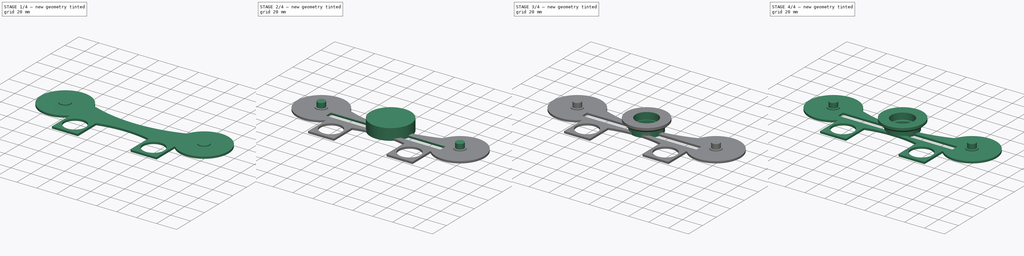
[diagram: build sequence overview — one tinted view per stage of 4, left to right]
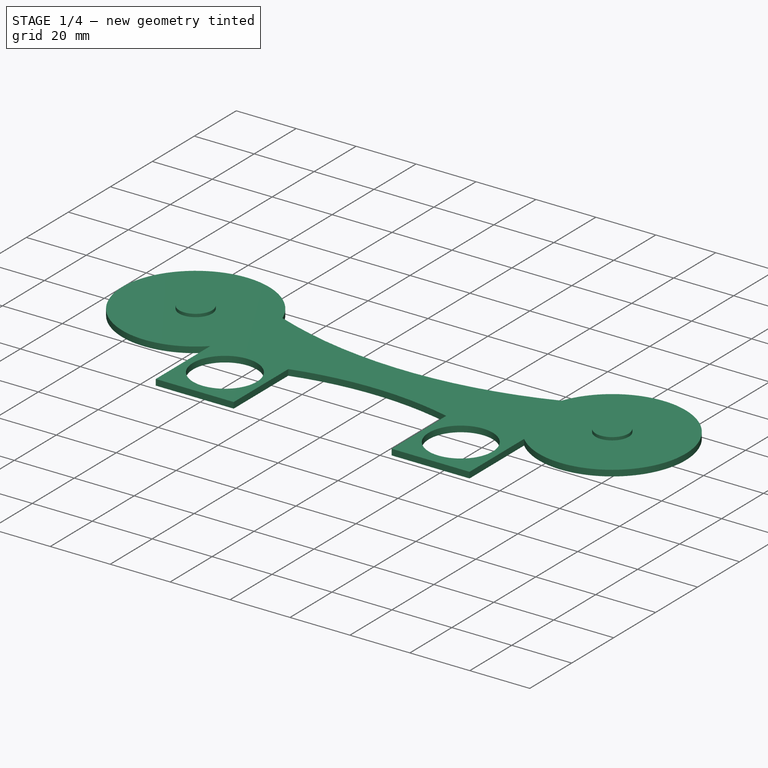
[diagram: stage 1 of 4 — iso view after this stage's code; geometry added in this stage tinted green]
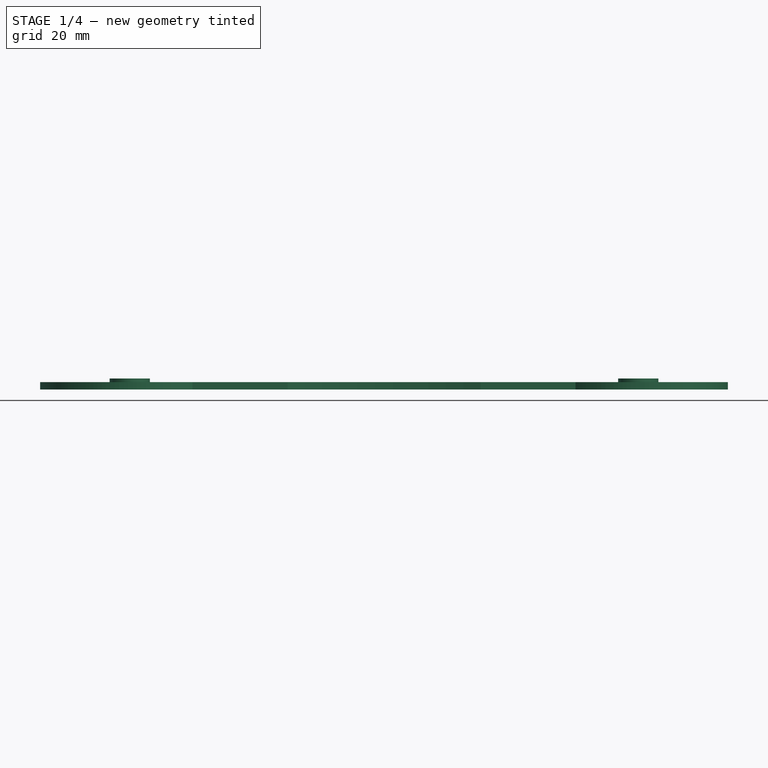
[diagram: stage 1 of 4 — front view after this stage's code; geometry added in this stage tinted green]
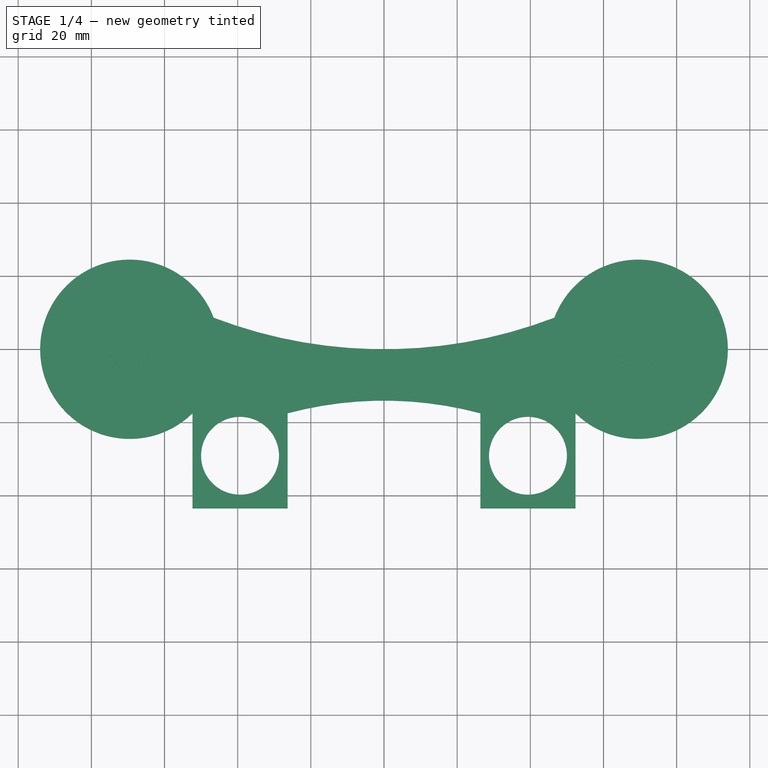
[diagram: stage 1 of 4 — top view after this stage's code; geometry added in this stage tinted green]
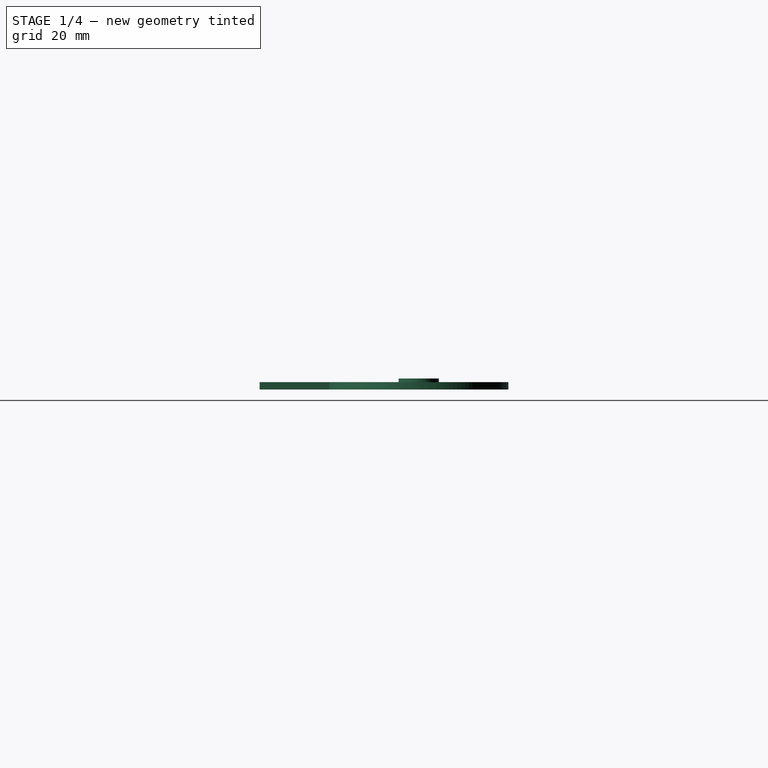
[diagram: stage 1 of 4 — right view after this stage's code; geometry added in this stage tinted green]
FCSTD DOCUMENT  (FreeCAD 0.18R16131 (Git))
Label: DryBoxRoller
License: All rights reserved
LicenseURL: http://en.wikipedia.org/wiki/All_rights_reserved
objects: Sketcher::SketchObject×9, PartDesign::Pocket×5, PartDesign::Pad×4, PartDesign::Chamfer×4, PartDesign::Body×2, App::Part×2
note: 33 computed .brp shape members not serialized (recipe doc carries the construction recipe); baked Part::Feature solids carry a one-line shape summary decoded from their .brp

FEATURE [Sketcher::SketchObject] Sketch004
  MapMode = 5
  Support = -> [XY_Plane003]
  sketch-geometry (16):
    g0: Circle [constr] CenterX=-69.5 CenterY=0 CenterZ=0 NormalX=0 NormalY=0 NormalZ=1 AngleXU=0 Radius=24.5
    g1: Circle [constr] CenterX=69.5 CenterY=0 CenterZ=0 NormalX=0 NormalY=0 NormalZ=1 AngleXU=0 Radius=24.5
    g2: ArcOfCircle CenterX=-0.00012 CenterY=130 CenterZ=0 NormalX=0 NormalY=0 NormalZ=1 AngleXU=0 Radius=130 StartAngle=4.34602 EndAngle=5.07876
    g3: LineSegment [constr] StartX=-52.3536 StartY=-17.5 StartZ=0 EndX=-26.3536 EndY=-17.5 EndZ=0
    g4: LineSegment StartX=-26.3536 StartY=-17.5 StartZ=0 EndX=-26.3536 EndY=-43.5 EndZ=0
    g5: LineSegment StartX=-26.3536 StartY=-43.5 StartZ=0 EndX=-52.3536 EndY=-43.5 EndZ=0
    g6: LineSegment StartX=-52.3536 StartY=-43.5 StartZ=0 EndX=-52.3536 EndY=-17.5 EndZ=0
    g7: LineSegment [constr] StartX=52.3536 StartY=-17.5 StartZ=0 EndX=26.3536 EndY=-17.5 EndZ=0
    g8: LineSegment StartX=26.3536 StartY=-17.5 StartZ=0 EndX=26.3536 EndY=-43.5 EndZ=0
    g9: LineSegment StartX=26.3536 StartY=-43.5 StartZ=0 EndX=52.3536 EndY=-43.5 EndZ=0
    g10: LineSegment StartX=52.3536 StartY=-43.5 StartZ=0 EndX=52.3536 EndY=-17.5 EndZ=0
    g11: ArcOfCircle CenterX=4.7e-15 CenterY=-115.829 CenterZ=0 NormalX=0 NormalY=0 NormalZ=1 AngleXU=0 Radius=101.799 StartAngle=1.30894 EndAngle=1.83266
    g12: Circle [constr] CenterX=-39.3536 CenterY=-29.11 CenterZ=0 NormalX=0 NormalY=0 NormalZ=1 AngleXU=0 Radius=10.61
    g13: Circle [constr] CenterX=39.3536 CenterY=-29.11 CenterZ=0 NormalX=0 NormalY=0 NormalZ=1 AngleXU=0 Radius=10.61
    g14: ArcOfCircle CenterX=-69.5 CenterY=7.9e-15 CenterZ=0 NormalX=0 NormalY=0 NormalZ=1 AngleXU=0 Radius=24.5 StartAngle=0.359854 EndAngle=5.48758
    g15: ArcOfCircle CenterX=69.5 CenterY=-1.623e-13 CenterZ=0 NormalX=0 NormalY=0 NormalZ=1 AngleXU=0 Radius=24.5 StartAngle=3.9372 EndAngle=9.06492
  constraints (48):
    c: PointOnObject(g0,g-1)
    c: Radius(g0) = 24.5
    c: PointOnObject(g1,g-1)
    c: DistanceX(g0,g-1) = 69.5
    c: DistanceX(g-1,g1) = 69.5
    c: PointOnObject(g2,g0)
    c: PointOnObject(g2,g1)
    c: PointOnObject(g-1,g2)
    c: Coincident(g3,g4)
    c: Coincident(g4,g5)
    c: Coincident(g5,g6)
    c: Coincident(g6,g3)
    c: Horizontal(g3)
    c: Horizontal(g5)
    c: Vertical(g4)
    c: Vertical(g6)
    c: PointOnObject(g3,g0)
    c: Coincident(g7,g8)
    c: Coincident(g8,g9)
    c: Coincident(g9,g10)
    c: Coincident(g10,g7)
    c: Horizontal(g7)
    c: Horizontal(g9)
    c: Vertical(g8)
    c: Vertical(g10)
    c: DistanceY(g5,g3) = 26
    c: DistanceX(g5,g4) = 26
    c: PointOnObject(g7,g1)
    c: Equal(g0,g1)
    c: Equal(g3,g7)
    c: Equal(g4,g8)
    c: DistanceY(g7,g-1) = 17.5
    c: DistanceY(g3,g-1) = 17.5
    c: Radius(g2) = 130
    c: Coincident(g11,g3)
    c: Coincident(g11,g7)
    c: Radius(g12) = 10.61
    c: DistanceY(g12,g3) = 11.61
    c: DistanceX(g5,g12) = 13
    c: Equal(g12,g13)
    c: DistanceY(g13,g7) = 11.61
    c: DistanceX(g13,g9) = 13
    c: Coincident(g14,g2)
    c: Coincident(g14,g3)
    c: Tangent(g14,g0)
    c: Coincident(g15,g2)
    c: Coincident(g15,g7)
    c: Tangent(g15,g1)
FEATURE [PartDesign::Pad] Pad001  label="MainBodyPad"
  Length = 2
  Length2 = 100
  Profile = -> Sketch004
  Type = 0
FEATURE [PartDesign::Body] Body
  Group = -> [Sketch,Pad,Sketch001,Pocket,Sketch002,Pocket001,Sketch003,Pocket002,Chamfer,Chamfer001,Chamfer002,Chamfer003]
  Origin = -> Origin002
  Tip = -> Chamfer003
FEATURE [App::Part] Part001  label="Roller"
  Group = -> [Body]
  Origin = -> Origin001
FEATURE [Sketcher::SketchObject] Sketch005
  ExternalGeometry = -> [Sketch004]
  MapMode = 5
  Placement = pos=(0,0,2) rot=(0,0,1;0rad)
  Support = -> [Pad001]
  sketch-geometry (2):
    g0: Circle CenterX=-39.3536 CenterY=-29.11 CenterZ=0 NormalX=0 NormalY=0 NormalZ=1 AngleXU=0 Radius=10.65
    g1: Circle CenterX=39.3536 CenterY=-29.11 CenterZ=0 NormalX=0 NormalY=0 NormalZ=1 AngleXU=0 Radius=10.65
  constraints (6):
    c: Radius(g0) = 10.65
    c: Equal(g0,g1)
    c: DistanceX(g-4,g0) = 13
    c: DistanceX(g1,g-6) = 13
    c: DistanceY(g0,g-3) = 11.61
    c: DistanceY(g1,g-6) = 11.61
FEATURE [PartDesign::Pocket] Pocket003  label="PVCSpacerPocket"
  BaseFeature = -> Pad001
  Length = 5
  Length2 = 100
  Profile = -> Sketch005
  Type = 1
FEATURE [Sketcher::SketchObject] Sketch006
  ExternalGeometry = -> [Pocket003]
  MapMode = 5
  Placement = pos=(0,0,2) rot=(0,0,1;0rad)
  Support = -> [Pocket003]
  sketch-geometry (2):
    g0: Circle CenterX=-69.5 CenterY=0 CenterZ=0 NormalX=0 NormalY=0 NormalZ=1 AngleXU=0 Radius=5.5
    g1: Circle CenterX=69.5 CenterY=0 CenterZ=0 NormalX=0 NormalY=0 NormalZ=1 AngleXU=0 Radius=5.5
  constraints (4):
    c: Coincident(g0,g-3)
    c: Coincident(g1,g-4)
    c: Equal(g0,g1)
    c: Radius(g0) = 5.5
FEATURE [PartDesign::Pad] Pad002  label="BearingBushingPad"
  BaseFeature = -> Pocket003
  Length = 1
  Length2 = 100
  Profile = -> Sketch006
  Type = 0
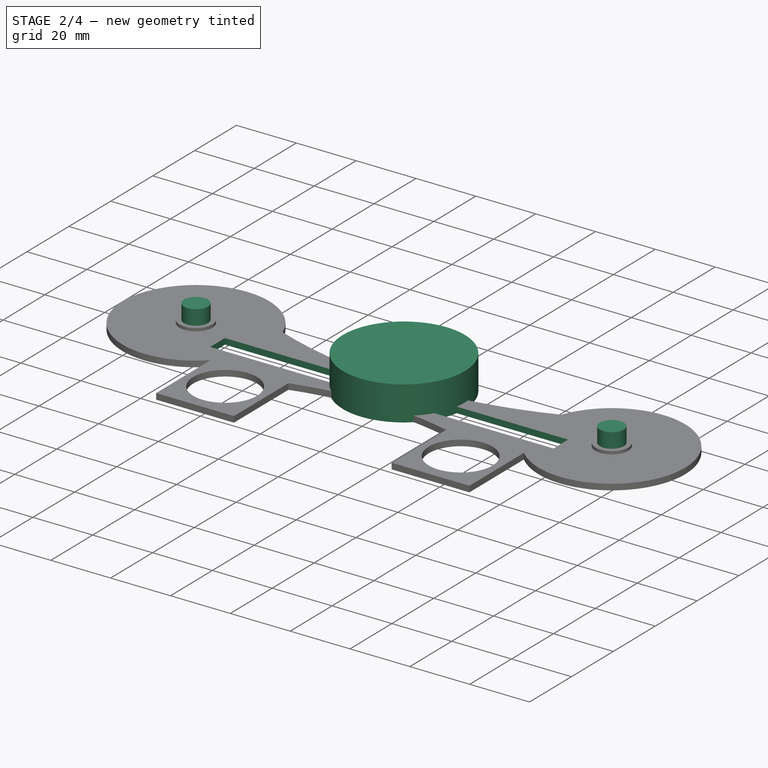
[diagram: stage 2 of 4 — iso view after this stage's code; geometry added in this stage tinted green]
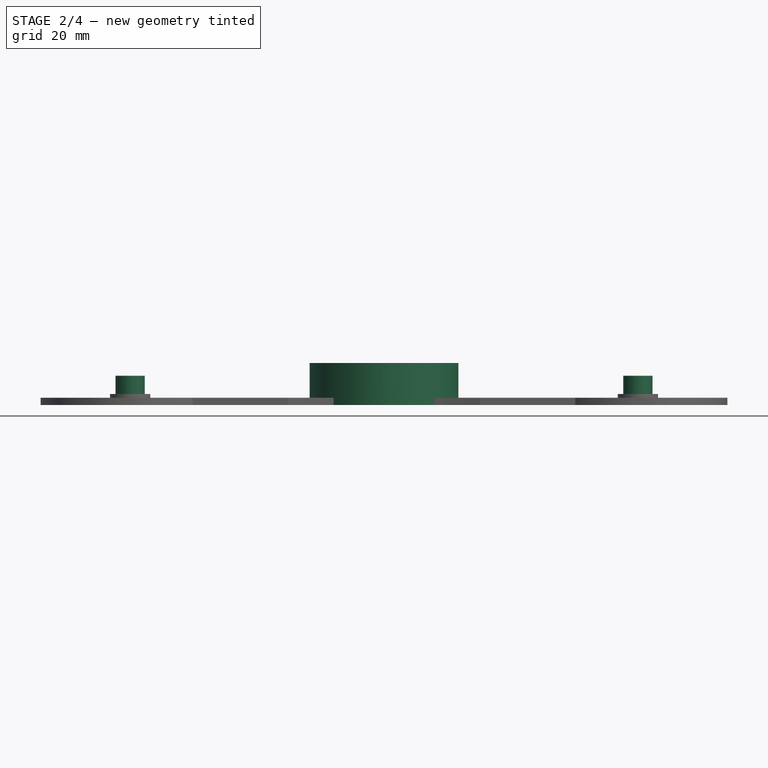
[diagram: stage 2 of 4 — front view after this stage's code; geometry added in this stage tinted green]
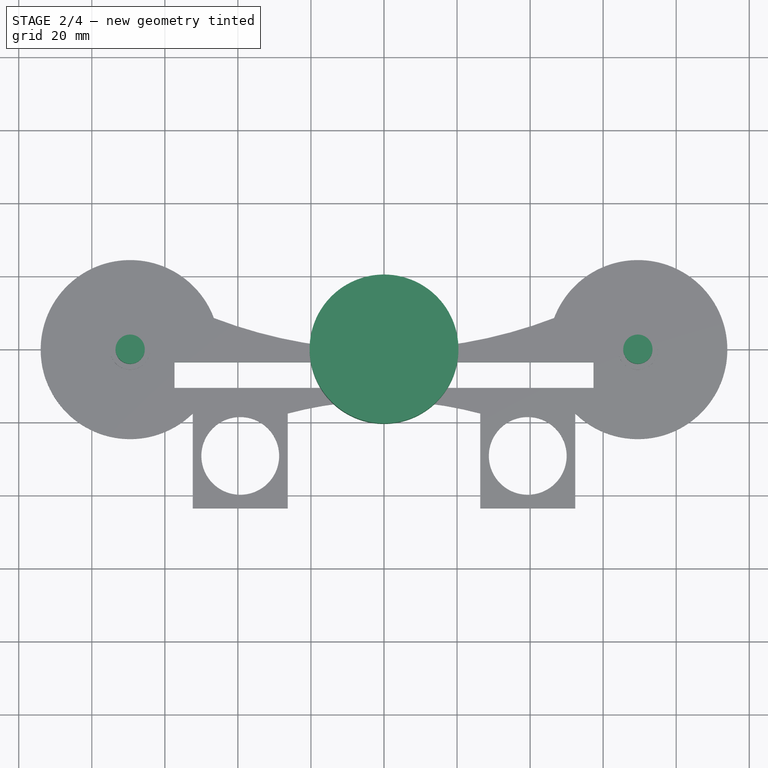
[diagram: stage 2 of 4 — top view after this stage's code; geometry added in this stage tinted green]
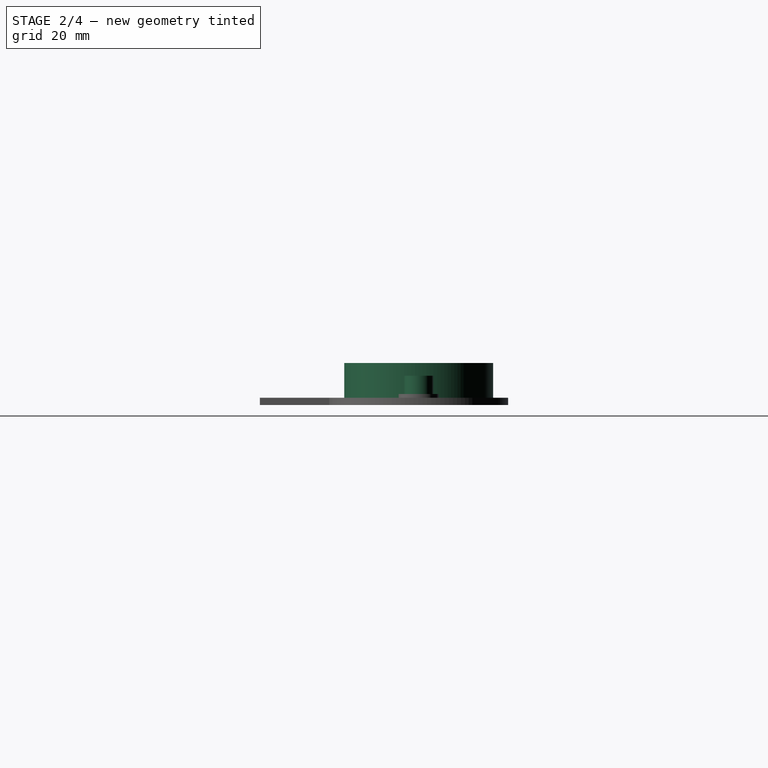
[diagram: stage 2 of 4 — right view after this stage's code; geometry added in this stage tinted green]
FEATURE [Sketcher::SketchObject] Sketch
  MapMode = 5
  Support = -> [XY_Plane002]
  sketch-geometry (1):
    g0: Circle CenterX=0 CenterY=0 CenterZ=0 NormalX=0 NormalY=0 NormalZ=1 AngleXU=0 Radius=20.375
  constraints (2):
    c: Coincident(g0,g-1)
    c: Radius(g0) = 20.375
FEATURE [PartDesign::Pad] Pad  label="MainBody"
  Length = 11.5
  Length2 = 100
  Profile = -> Sketch
  Type = 0
FEATURE [Sketcher::SketchObject] Sketch007
  ExternalGeometry = -> [Pocket003]
  MapMode = 5
  Placement = pos=(0,0,2) rot=(0,0,1;0rad)
  Support = -> [Pad002]
  sketch-geometry (2):
    g0: Circle CenterX=-69.5 CenterY=0 CenterZ=0 NormalX=0 NormalY=0 NormalZ=1 AngleXU=0 Radius=4
    g1: Circle CenterX=69.5 CenterY=-1.623e-13 CenterZ=0 NormalX=0 NormalY=0 NormalZ=1 AngleXU=0 Radius=4
  constraints (4):
    c: Coincident(g0,g-3)
    c: Coincident(g1,g-4)
    c: Equal(g1,g0)
    c: Radius(g0) = 4
FEATURE [PartDesign::Pad] Pad003  label="BearingStudPad"
  BaseFeature = -> Pad002
  Length = 6
  Length2 = 100
  Profile = -> Sketch007
  Type = 0
FEATURE [Sketcher::SketchObject] Sketch008
  ExternalGeometry = -> [Pad003]
  MapMode = 5
  Placement = pos=(0,0,2) rot=(0,0,1;0rad)
  Support = -> [Pad003]
  sketch-geometry (4):
    g0: LineSegment StartX=-57.3536 StartY=-3.5 StartZ=0 EndX=57.3536 EndY=-3.5 EndZ=0
    g1: LineSegment StartX=57.3536 StartY=-3.5 StartZ=0 EndX=57.3536 EndY=-10.5 EndZ=0
    g2: LineSegment StartX=57.3536 StartY=-10.5 StartZ=0 EndX=-57.3536 EndY=-10.5 EndZ=0
    g3: LineSegment StartX=-57.3536 StartY=-10.5 StartZ=0 EndX=-57.3536 EndY=-3.5 EndZ=0
  constraints (12):
    c: Coincident(g0,g1)
    c: Coincident(g1,g2)
    c: Coincident(g2,g3)
    c: Coincident(g3,g0)
    c: Horizontal(g0)
    c: Horizontal(g2)
    c: Vertical(g1)
    c: Vertical(g3)
    c: DistanceX(g1,g-4) = -5
    c: DistanceX(g-3,g2) = -5
    c: DistanceY(g-4,g1) = 7
    c: DistanceY(g1,g0) = 7
FEATURE [PartDesign::Pocket] Pocket004  label="FilamentSaverPocket"
  BaseFeature = -> Pad003
  Length = 5
  Length2 = 100
  Profile = -> Sketch008
  Type = 1
FEATURE [PartDesign::Body] Body001
  Group = -> [Sketch004,Pad001,Sketch005,Pocket003,Sketch006,Pad002,Sketch007,Pad003,Sketch008,Pocket004]
  Origin = -> Origin003
  Tip = -> Pocket004
FEATURE [App::Part] Part  label="Side"
  Group = -> [Body001]
  Origin = -> Origin
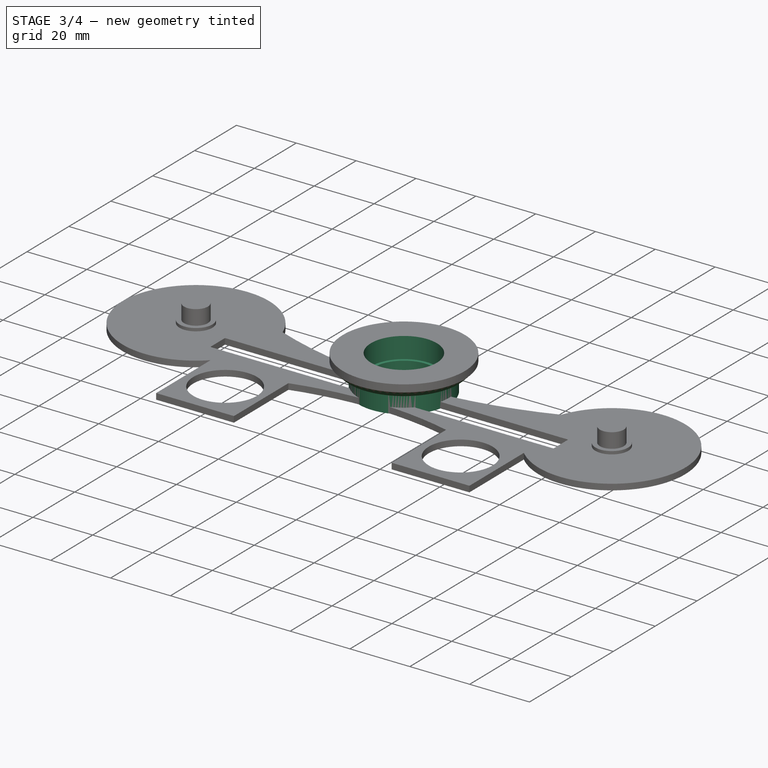
[diagram: stage 3 of 4 — iso view after this stage's code; geometry added in this stage tinted green]
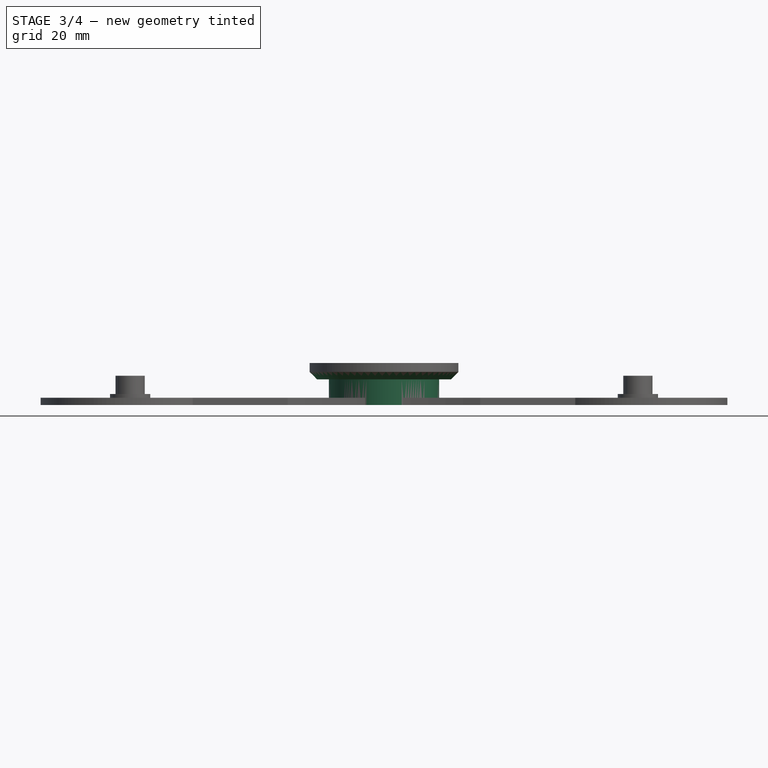
[diagram: stage 3 of 4 — front view after this stage's code; geometry added in this stage tinted green]
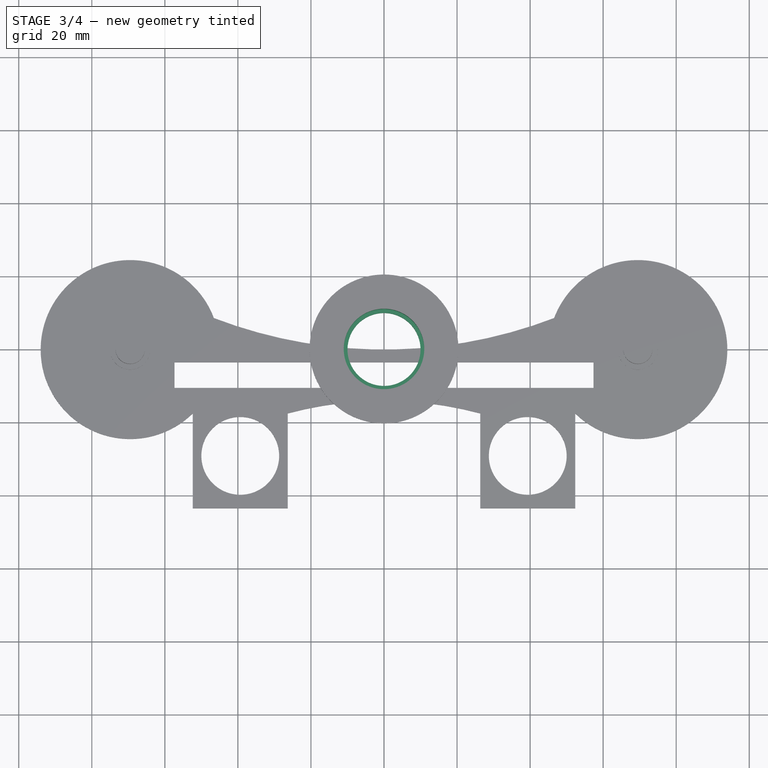
[diagram: stage 3 of 4 — top view after this stage's code; geometry added in this stage tinted green]
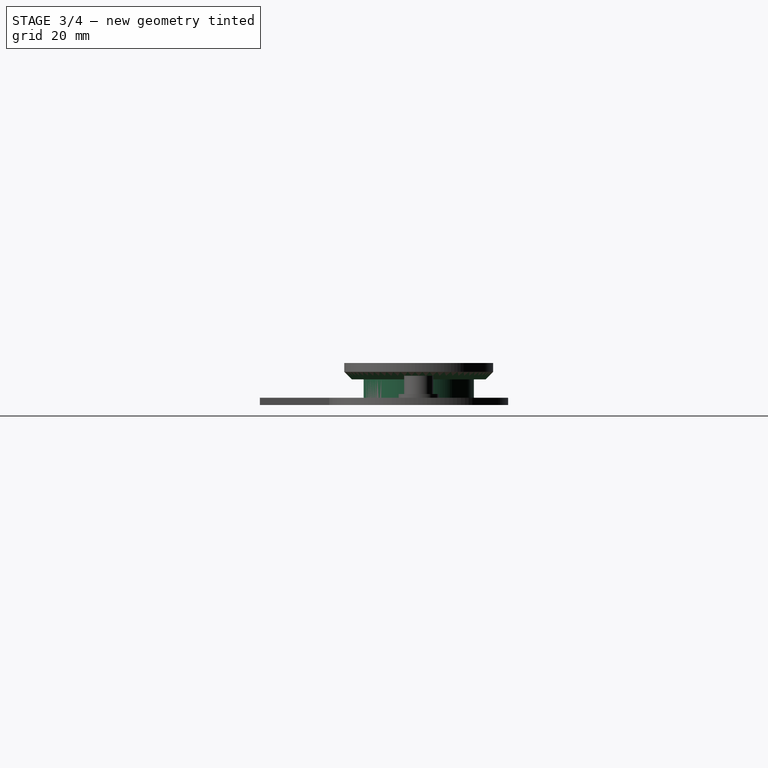
[diagram: stage 3 of 4 — right view after this stage's code; geometry added in this stage tinted green]
FEATURE [Sketcher::SketchObject] Sketch001
  MapMode = 5
  Placement = pos=(0,0,11.5) rot=(0,0,1;0rad)
  Support = -> [Pad]
  sketch-geometry (1):
    g0: Circle CenterX=0 CenterY=0 CenterZ=0 NormalX=0 NormalY=0 NormalZ=1 AngleXU=0 Radius=11.02
  constraints (2):
    c: Coincident(g0,g-1)
    c: Radius(g0) = 11.02
FEATURE [PartDesign::Pocket] Pocket  label="BearingPocket"
  BaseFeature = -> Pad
  Length = 7
  Length2 = 100
  Profile = -> Sketch001
  Type = 0
FEATURE [Sketcher::SketchObject] Sketch002
  MapMode = 5
  Placement = pos=(0,0,0) rot=(1,0,0;3.14159rad)
  Support = -> [Pocket]
  sketch-geometry (2):
    g0: Circle CenterX=0 CenterY=0 CenterZ=0 NormalX=0 NormalY=0 NormalZ=1 AngleXU=0 Radius=15.1
    g1: Circle CenterX=0 CenterY=0 CenterZ=0 NormalX=0 NormalY=0 NormalZ=1 AngleXU=0 Radius=22.558
  constraints (3):
    c: Coincident(g0,g-1)
    c: Radius(g0) = 15.1
    c: Coincident(g1,g0)
FEATURE [PartDesign::Pocket] Pocket001  label="PVCRollerPocket"
  BaseFeature = -> Pocket
  Length = 7
  Length2 = 100
  Profile = -> Sketch002
  Type = 0
FEATURE [Sketcher::SketchObject] Sketch003
  MapMode = 5
  Placement = pos=(0,0,0) rot=(1,0,0;3.14159rad)
  sketch-geometry (1):
    g0: Circle CenterX=0 CenterY=0 CenterZ=0 NormalX=0 NormalY=0 NormalZ=1 AngleXU=0 Radius=10
  constraints (2):
    c: Coincident(g0,g-1)
    c: Radius(g0) = 10
FEATURE [PartDesign::Pocket] Pocket002  label="MaterialSaverPocket"
  BaseFeature = -> Pocket001
  Length = 5
  Length2 = 100
  Profile = -> Sketch003
  Type = 1
FEATURE [PartDesign::Chamfer] Chamfer  label="SpoolAlignmentChamfer"
  Base = -> Pocket002 [Edge1]
  BaseFeature = -> Pocket002
  Size = 2.07
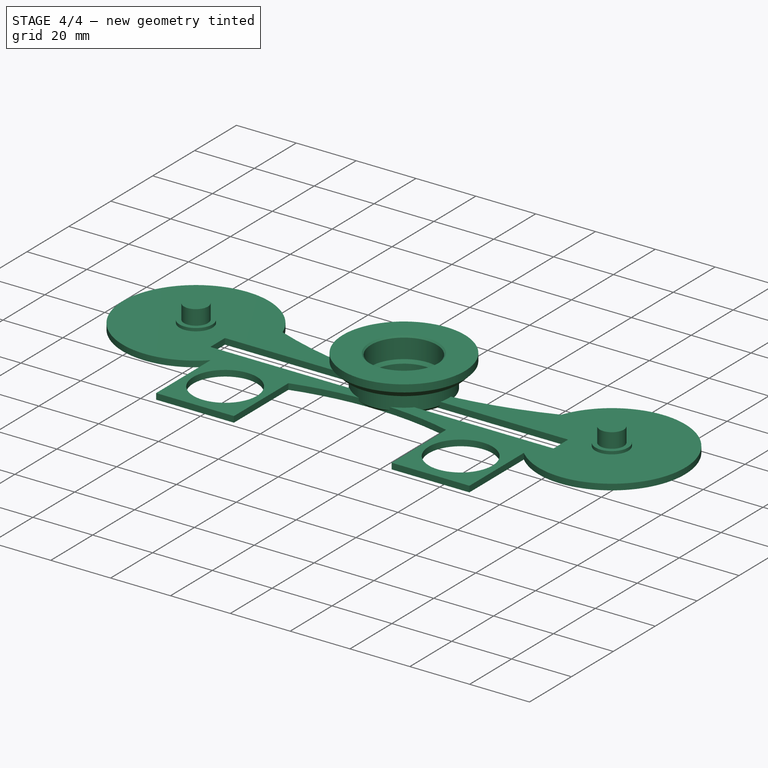
[diagram: stage 4 of 4 — iso view after this stage's code; geometry added in this stage tinted green]
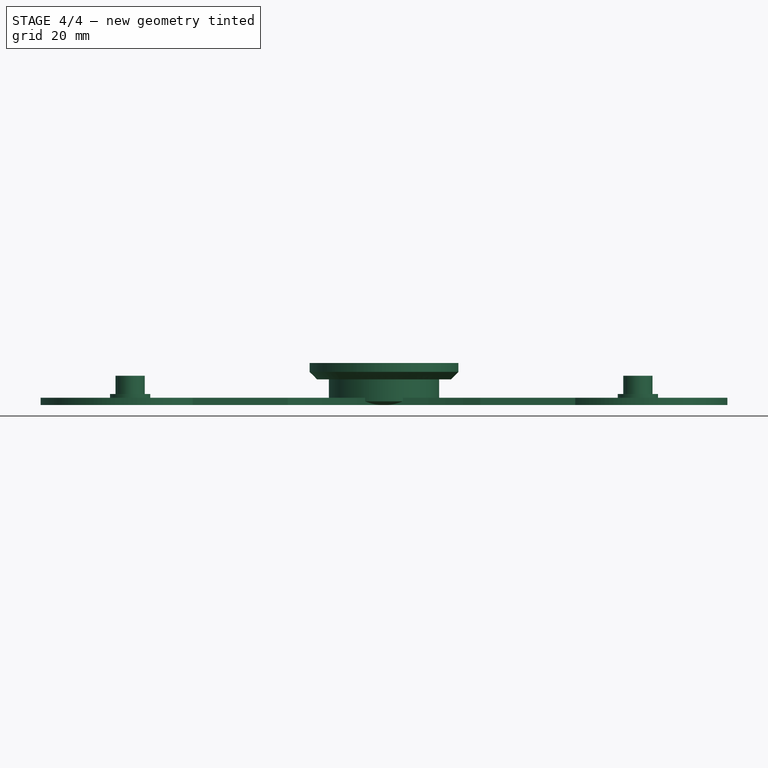
[diagram: stage 4 of 4 — front view after this stage's code; geometry added in this stage tinted green]
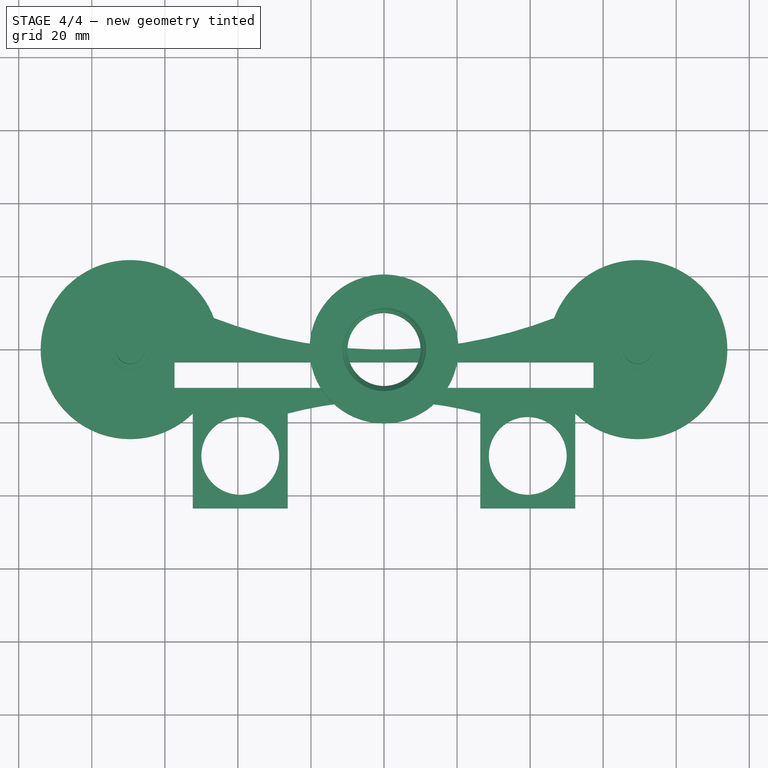
[diagram: stage 4 of 4 — top view after this stage's code; geometry added in this stage tinted green]
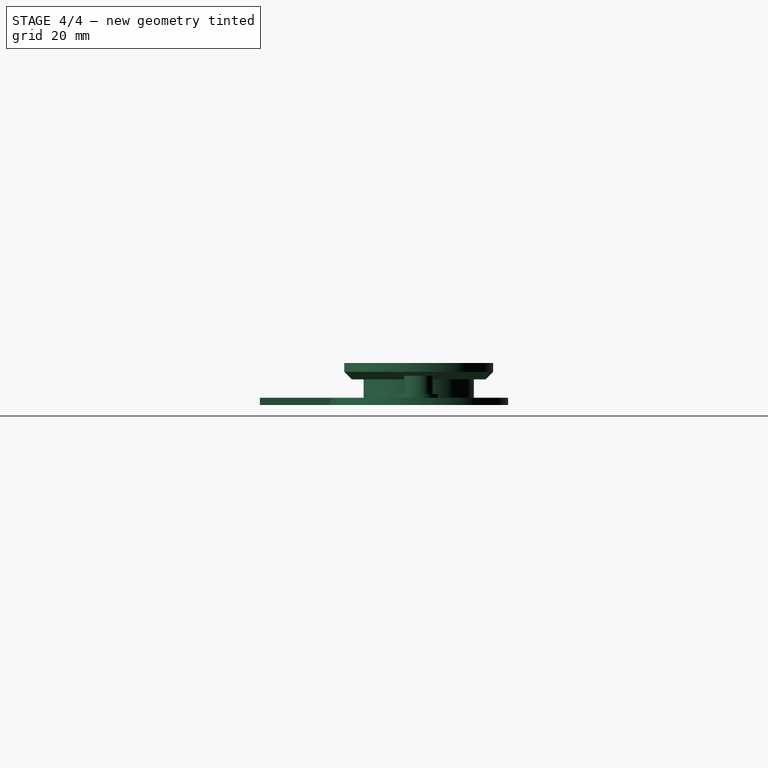
[diagram: stage 4 of 4 — right view after this stage's code; geometry added in this stage tinted green]
FEATURE [PartDesign::Chamfer] Chamfer001  label="BearingInsertChamfer"
  Base = -> Chamfer [Edge6]
  BaseFeature = -> Chamfer
  Size = 0.5
FEATURE [PartDesign::Chamfer] Chamfer002  label="PrintabilityChamfer"
  Base = -> Chamfer001 [Edge11]
  BaseFeature = -> Chamfer001
  Size = 0.9
FEATURE [PartDesign::Chamfer] Chamfer003  label="PVCInsertChamfer"
  Base = -> Chamfer002 [Edge11]
  BaseFeature = -> Chamfer002
  Size = 1
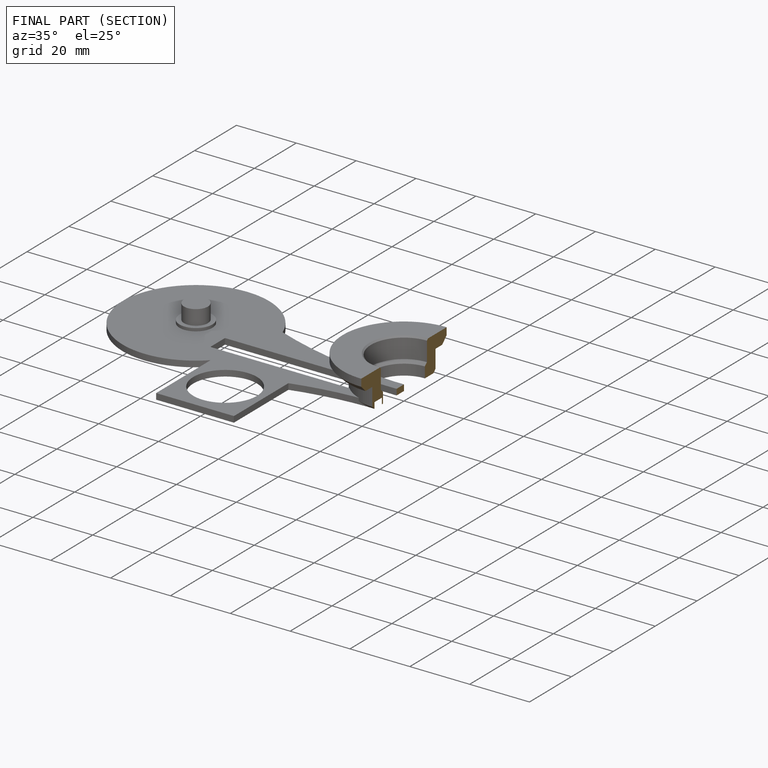
[diagram: finished part — half-section view (interior)]
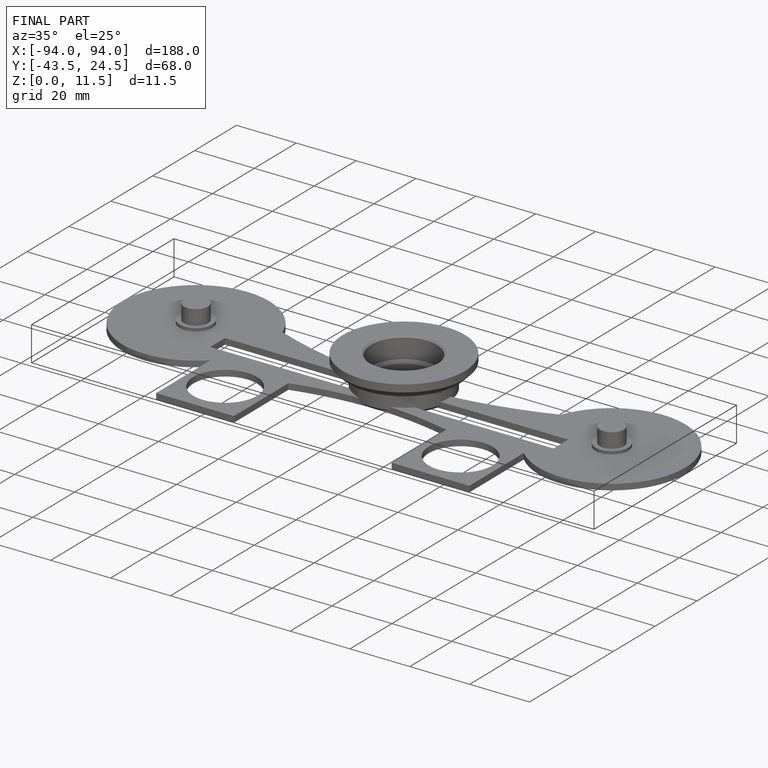
[diagram: finished part — iso view with bounding-box wireframe]
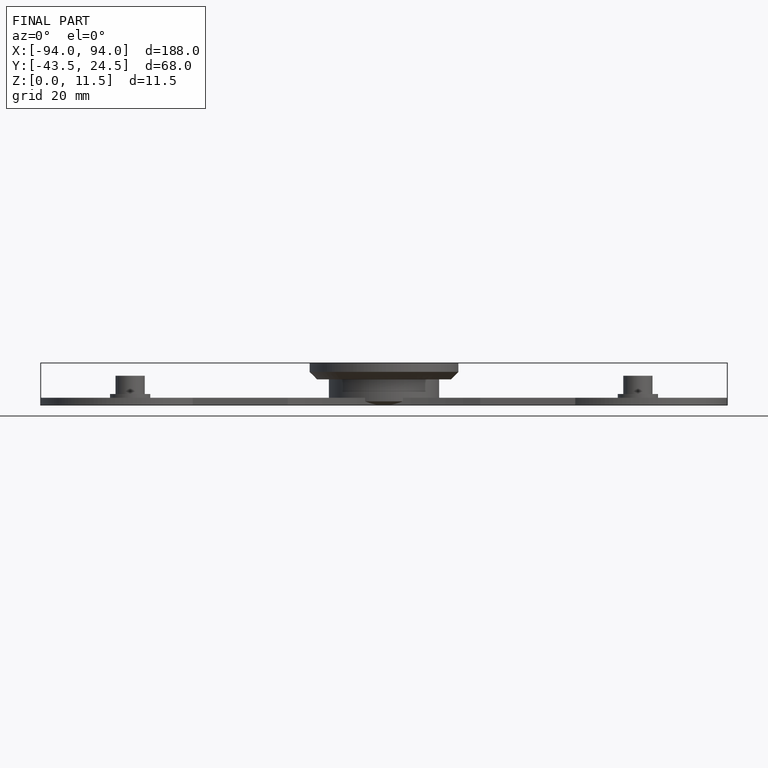
[diagram: finished part — front view with bounding-box wireframe]
